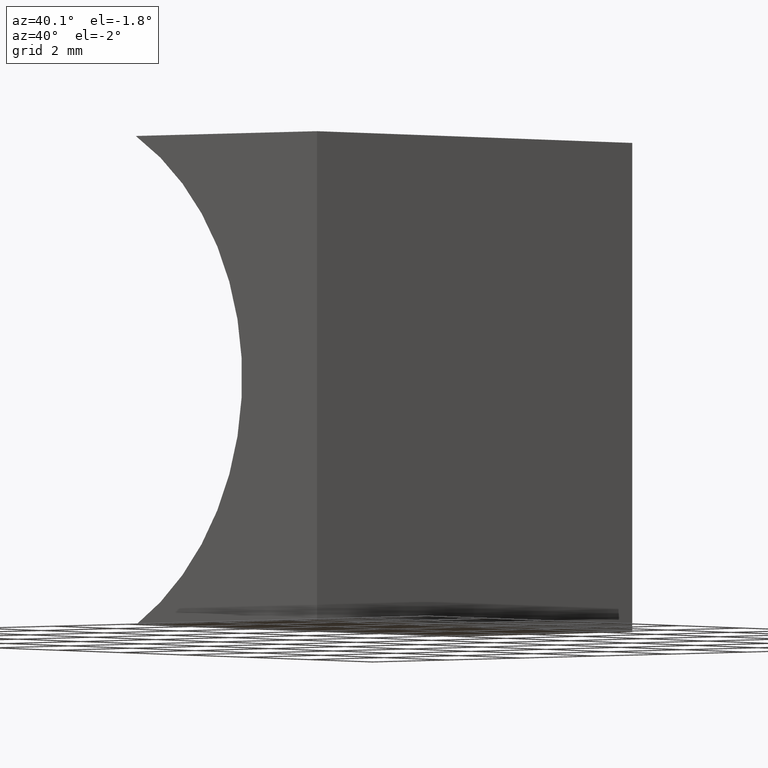
[diagram: clean part render]
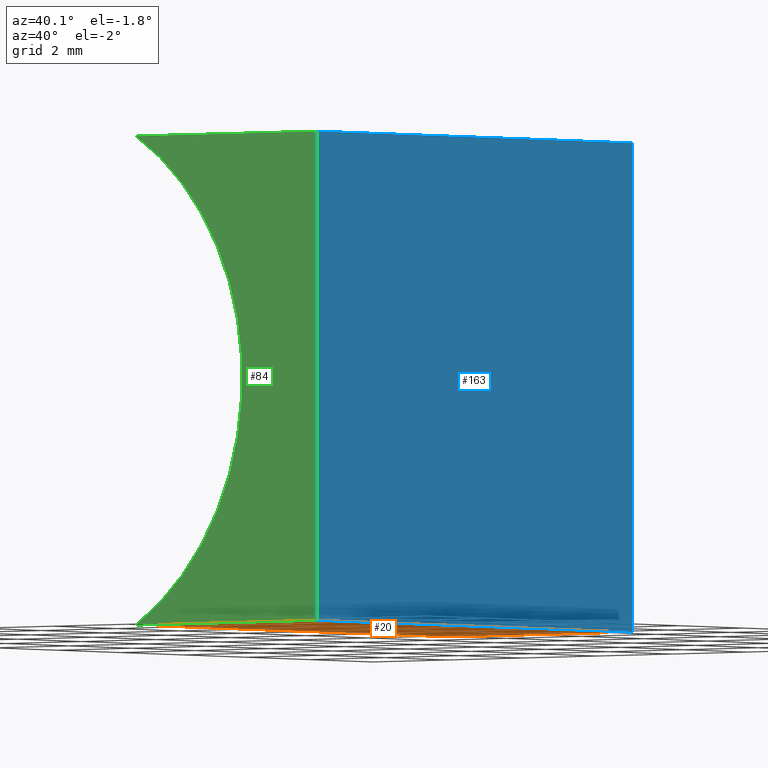
[diagram: same view with three faces highlighted in distinct colors, each labeled with its STEP entity id]
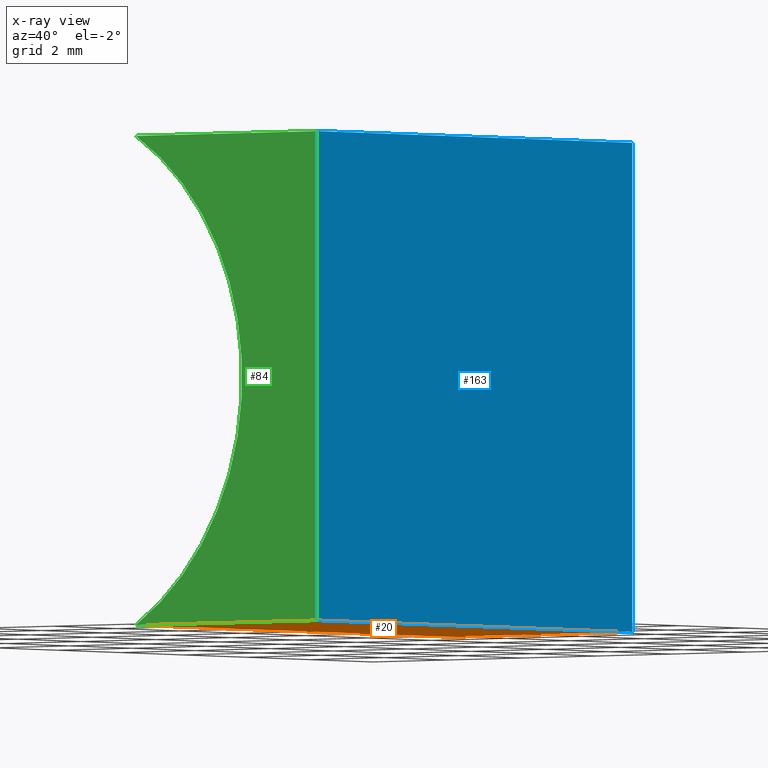
[diagram: x-ray of the same camera — body ghosted, the three highlighted faces saturated]
A machine part, auxiliary view with three faces highlighted in distinct colors.
The next image is the same camera in x-ray (body ghosted, the three faces saturated) — at least one of them is partly hidden behind the body in this view.
Their STEP definitions:

[orange] entity #20 — the highlighted planar face has unit normal (0, -0, 1).
#2 = ORIENTED_EDGE ( 'NONE', *, *, #99, .F. ) ;
#3 = CARTESIAN_POINT ( 'NONE',  ( 0.0000000000000000000, 0.0000000000000000000, 0.0000000000000000000 ) ) ;
#7 = LINE ( 'NONE', #23, #85 ) ;
#11 = VECTOR ( 'NONE', #57, 1000.000000000000000 ) ;
#13 = CARTESIAN_POINT ( 'NONE',  ( 0.0000000000000000000, 10.00000000000000000, 0.0000000000000000000 ) ) ;
#20 = ADVANCED_FACE ( 'NONE', ( #45 ), #58, .F. ) ;
#23 = CARTESIAN_POINT ( 'NONE',  ( 0.0000000000000000000, 0.0000000000000000000, 0.0000000000000000000 ) ) ;
#25 = DIRECTION ( 'NONE',  ( 1.000000000000000000, 0.0000000000000000000, -1.091100883338997400E-016 ) ) ;
#32 = VERTEX_POINT ( 'NONE', #149 ) ;
#34 = VECTOR ( 'NONE', #113, 1000.000000000000000 ) ;
#43 = CARTESIAN_POINT ( 'NONE',  ( 0.0000000000000000000, 10.00000000000000000, 0.0000000000000000000 ) ) ;
#45 = FACE_OUTER_BOUND ( 'NONE', #68, .T. ) ;
#49 = LINE ( 'NONE', #87, #34 ) ;
#56 = EDGE_CURVE ( 'NONE', #112, #32, #49, .T. ) ;
#57 = DIRECTION ( 'NONE',  ( -1.000000000000000000, 0.0000000000000000000, 1.091100883338997400E-016 ) ) ;
#58 = PLANE ( 'NONE',  #152 ) ;
#60 = DIRECTION ( 'NONE',  ( -1.000000000000000000, 0.0000000000000000000, 1.091100883338997400E-016 ) ) ;
#68 = EDGE_LOOP ( 'NONE', ( #138, #81, #2, #199 ) ) ;
#72 = DIRECTION ( 'NONE',  ( 1.091100883338997400E-016, -0.0000000000000000000, 1.000000000000000000 ) ) ;
#76 = VECTOR ( 'NONE', #134, 1000.000000000000000 ) ;
#81 = ORIENTED_EDGE ( 'NONE', *, *, #56, .F. ) ;
#85 = VECTOR ( 'NONE', #60, 1000.000000000000000 ) ;
#87 = CARTESIAN_POINT ( 'NONE',  ( -4.841342584317557900, 10.00000000000000000, 8.673617379884035500E-016 ) ) ;
#99 = EDGE_CURVE ( 'NONE', #147, #112, #118, .T. ) ;
#106 = CARTESIAN_POINT ( 'NONE',  ( 0.0000000000000000000, 10.00000000000000000, 0.0000000000000000000 ) ) ;
#112 = VERTEX_POINT ( 'NONE', #133 ) ;
#113 = DIRECTION ( 'NONE',  ( -0.0000000000000000000, -1.000000000000000000, -0.0000000000000000000 ) ) ;
#115 = LINE ( 'NONE', #43, #76 ) ;
#118 = LINE ( 'NONE', #13, #11 ) ;
#130 = EDGE_CURVE ( 'NONE', #153, #32, #7, .T. ) ;
#133 = CARTESIAN_POINT ( 'NONE',  ( -4.841342584317557900, 10.00000000000000000, 8.673617379884035500E-016 ) ) ;
#134 = DIRECTION ( 'NONE',  ( -0.0000000000000000000, -1.000000000000000000, -0.0000000000000000000 ) ) ;
#138 = ORIENTED_EDGE ( 'NONE', *, *, #130, .T. ) ;
#147 = VERTEX_POINT ( 'NONE', #106 ) ;
#149 = CARTESIAN_POINT ( 'NONE',  ( -4.841342584317557900, 0.0000000000000000000, 8.673617379884035500E-016 ) ) ;
#152 = AXIS2_PLACEMENT_3D ( 'NONE', #202, #72, #25 ) ;
#153 = VERTEX_POINT ( 'NONE', #3 ) ;
#155 = EDGE_CURVE ( 'NONE', #147, #153, #115, .T. ) ;
#199 = ORIENTED_EDGE ( 'NONE', *, *, #155, .T. ) ;
#202 = CARTESIAN_POINT ( 'NONE',  ( 0.0000000000000000000, 10.00000000000000000, 0.0000000000000000000 ) ) ;

[blue] entity #163 — the highlighted planar face has unit normal (-1, 0, 0).
#3 = CARTESIAN_POINT ( 'NONE',  ( 0.0000000000000000000, 0.0000000000000000000, 0.0000000000000000000 ) ) ;
#16 = CARTESIAN_POINT ( 'NONE',  ( 0.0000000000000000000, 10.00000000000000000, 0.0000000000000000000 ) ) ;
#17 = DIRECTION ( 'NONE',  ( -6.123233995736766000E-017, -0.0000000000000000000, -1.000000000000000000 ) ) ;
#26 = ORIENTED_EDGE ( 'NONE', *, *, #167, .F. ) ;
#29 = EDGE_LOOP ( 'NONE', ( #35, #198, #26, #92 ) ) ;
#33 = FACE_OUTER_BOUND ( 'NONE', #29, .T. ) ;
#35 = ORIENTED_EDGE ( 'NONE', *, *, #141, .T. ) ;
#38 = VECTOR ( 'NONE', #17, 1000.000000000000000 ) ;
#43 = CARTESIAN_POINT ( 'NONE',  ( 0.0000000000000000000, 10.00000000000000000, 0.0000000000000000000 ) ) ;
#47 = VECTOR ( 'NONE', #90, 1000.000000000000000 ) ;
#69 = CARTESIAN_POINT ( 'NONE',  ( 0.0000000000000000000, 0.0000000000000000000, 0.0000000000000000000 ) ) ;
#76 = VECTOR ( 'NONE', #134, 1000.000000000000000 ) ;
#77 = DIRECTION ( 'NONE',  ( 6.123233995736766000E-017, 0.0000000000000000000, 1.000000000000000000 ) ) ;
#79 = LINE ( 'NONE', #102, #47 ) ;
#90 = DIRECTION ( 'NONE',  ( -0.0000000000000000000, -1.000000000000000000, -0.0000000000000000000 ) ) ;
#92 = ORIENTED_EDGE ( 'NONE', *, *, #117, .T. ) ;
#102 = CARTESIAN_POINT ( 'NONE',  ( 6.123233995736766300E-016, 10.00000000000000000, 10.00000000000000000 ) ) ;
#106 = CARTESIAN_POINT ( 'NONE',  ( 0.0000000000000000000, 10.00000000000000000, 0.0000000000000000000 ) ) ;
#108 = CARTESIAN_POINT ( 'NONE',  ( 0.0000000000000000000, 10.00000000000000000, 0.0000000000000000000 ) ) ;
#109 = VERTEX_POINT ( 'NONE', #204 ) ;
#114 = CARTESIAN_POINT ( 'NONE',  ( 6.123233995736766300E-016, 0.0000000000000000000, 10.00000000000000000 ) ) ;
#115 = LINE ( 'NONE', #43, #76 ) ;
#117 = EDGE_CURVE ( 'NONE', #109, #129, #79, .T. ) ;
#120 = AXIS2_PLACEMENT_3D ( 'NONE', #16, #178, #77 ) ;
#122 = VECTOR ( 'NONE', #158, 1000.000000000000000 ) ;
#126 = LINE ( 'NONE', #69, #122 ) ;
#129 = VERTEX_POINT ( 'NONE', #114 ) ;
#134 = DIRECTION ( 'NONE',  ( -0.0000000000000000000, -1.000000000000000000, -0.0000000000000000000 ) ) ;
#141 = EDGE_CURVE ( 'NONE', #129, #153, #126, .T. ) ;
#147 = VERTEX_POINT ( 'NONE', #106 ) ;
#153 = VERTEX_POINT ( 'NONE', #3 ) ;
#155 = EDGE_CURVE ( 'NONE', #147, #153, #115, .T. ) ;
#158 = DIRECTION ( 'NONE',  ( -6.123233995736766000E-017, -0.0000000000000000000, -1.000000000000000000 ) ) ;
#159 = PLANE ( 'NONE',  #120 ) ;
#163 = ADVANCED_FACE ( 'NONE', ( #33 ), #159, .F. ) ;
#167 = EDGE_CURVE ( 'NONE', #109, #147, #170, .T. ) ;
#170 = LINE ( 'NONE', #108, #38 ) ;
#178 = DIRECTION ( 'NONE',  ( -1.000000000000000000, 0.0000000000000000000, 6.123233995736766000E-017 ) ) ;
#198 = ORIENTED_EDGE ( 'NONE', *, *, #155, .F. ) ;
#204 = CARTESIAN_POINT ( 'NONE',  ( 6.123233995736766300E-016, 10.00000000000000000, 10.00000000000000000 ) ) ;

[green] entity #84 — the highlighted planar face has unit normal (0, 1, 0).
#1 = DIRECTION ( 'NONE',  ( 0.0000000000000000000, -0.0000000000000000000, 1.000000000000000000 ) ) ;
#3 = CARTESIAN_POINT ( 'NONE',  ( 0.0000000000000000000, 0.0000000000000000000, 0.0000000000000000000 ) ) ;
#7 = LINE ( 'NONE', #23, #85 ) ;
#14 = DIRECTION ( 'NONE',  ( 0.0000000000000000000, 1.000000000000000000, 0.0000000000000000000 ) ) ;
#15 = CARTESIAN_POINT ( 'NONE',  ( -7.820000000000000300, 0.0000000000000000000, 5.000000000000000900 ) ) ;
#22 = CARTESIAN_POINT ( 'NONE',  ( 6.123233995736766300E-016, 0.0000000000000000000, 10.00000000000000000 ) ) ;
#23 = CARTESIAN_POINT ( 'NONE',  ( 0.0000000000000000000, 0.0000000000000000000, 0.0000000000000000000 ) ) ;
#31 = EDGE_CURVE ( 'NONE', #100, #129, #177, .T. ) ;
#32 = VERTEX_POINT ( 'NONE', #149 ) ;
#48 = EDGE_CURVE ( 'NONE', #32, #100, #127, .T. ) ;
#53 = FACE_OUTER_BOUND ( 'NONE', #137, .T. ) ;
#60 = DIRECTION ( 'NONE',  ( -1.000000000000000000, 0.0000000000000000000, 1.091100883338997400E-016 ) ) ;
#66 = DIRECTION ( 'NONE',  ( -0.0000000000000000000, -1.000000000000000000, -0.0000000000000000000 ) ) ;
#69 = CARTESIAN_POINT ( 'NONE',  ( 0.0000000000000000000, 0.0000000000000000000, 0.0000000000000000000 ) ) ;
#70 = PLANE ( 'NONE',  #83 ) ;
#71 = ORIENTED_EDGE ( 'NONE', *, *, #48, .F. ) ;
#83 = AXIS2_PLACEMENT_3D ( 'NONE', #15, #14, #1 ) ;
#84 = ADVANCED_FACE ( 'NONE', ( #53 ), #70, .F. ) ;
#85 = VECTOR ( 'NONE', #60, 1000.000000000000000 ) ;
#95 = VECTOR ( 'NONE', #132, 1000.000000000000000 ) ;
#100 = VERTEX_POINT ( 'NONE', #154 ) ;
#111 = ORIENTED_EDGE ( 'NONE', *, *, #31, .F. ) ;
#114 = CARTESIAN_POINT ( 'NONE',  ( 6.123233995736766300E-016, 0.0000000000000000000, 10.00000000000000000 ) ) ;
#122 = VECTOR ( 'NONE', #158, 1000.000000000000000 ) ;
#126 = LINE ( 'NONE', #69, #122 ) ;
#127 = CIRCLE ( 'NONE', #166, 5.820000000000000300 ) ;
#129 = VERTEX_POINT ( 'NONE', #114 ) ;
#130 = EDGE_CURVE ( 'NONE', #153, #32, #7, .T. ) ;
#132 = DIRECTION ( 'NONE',  ( 1.000000000000000000, -0.0000000000000000000, -0.0000000000000000000 ) ) ;
#137 = EDGE_LOOP ( 'NONE', ( #183, #145, #111, #71 ) ) ;
#141 = EDGE_CURVE ( 'NONE', #129, #153, #126, .T. ) ;
#145 = ORIENTED_EDGE ( 'NONE', *, *, #141, .F. ) ;
#149 = CARTESIAN_POINT ( 'NONE',  ( -4.841342584317557900, 0.0000000000000000000, 8.673617379884035500E-016 ) ) ;
#153 = VERTEX_POINT ( 'NONE', #3 ) ;
#154 = CARTESIAN_POINT ( 'NONE',  ( -4.841342584317557000, 0.0000000000000000000, 10.00000000000000000 ) ) ;
#158 = DIRECTION ( 'NONE',  ( -6.123233995736766000E-017, -0.0000000000000000000, -1.000000000000000000 ) ) ;
#166 = AXIS2_PLACEMENT_3D ( 'NONE', #200, #66, #189 ) ;
#177 = LINE ( 'NONE', #22, #95 ) ;
#183 = ORIENTED_EDGE ( 'NONE', *, *, #130, .F. ) ;
#189 = DIRECTION ( 'NONE',  ( 0.0000000000000000000, 0.0000000000000000000, 1.000000000000000000 ) ) ;
#200 = CARTESIAN_POINT ( 'NONE',  ( -7.820000000000000300, 0.0000000000000000000, 5.000000000000000900 ) ) ;